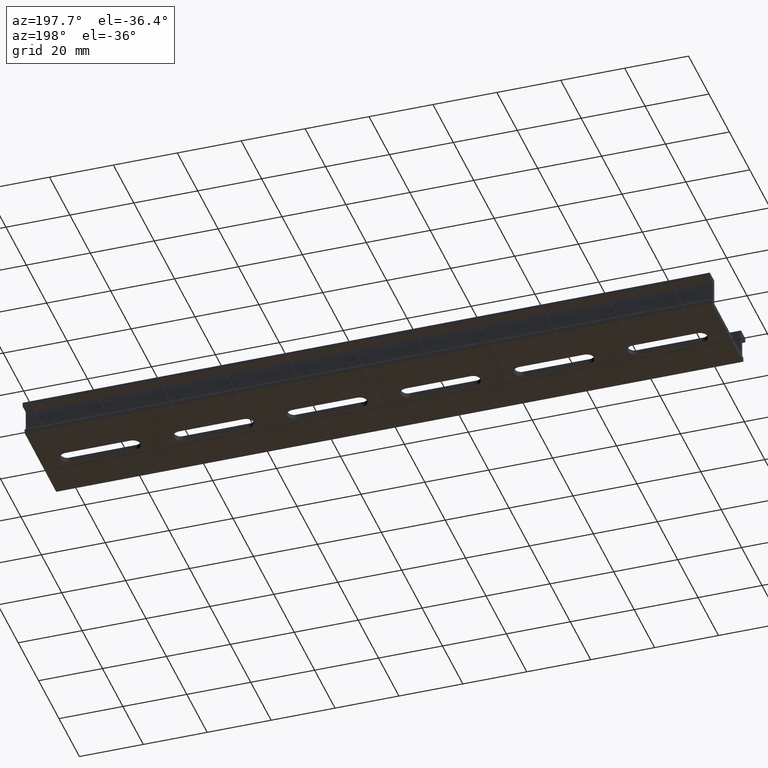
[diagram: clean part render]
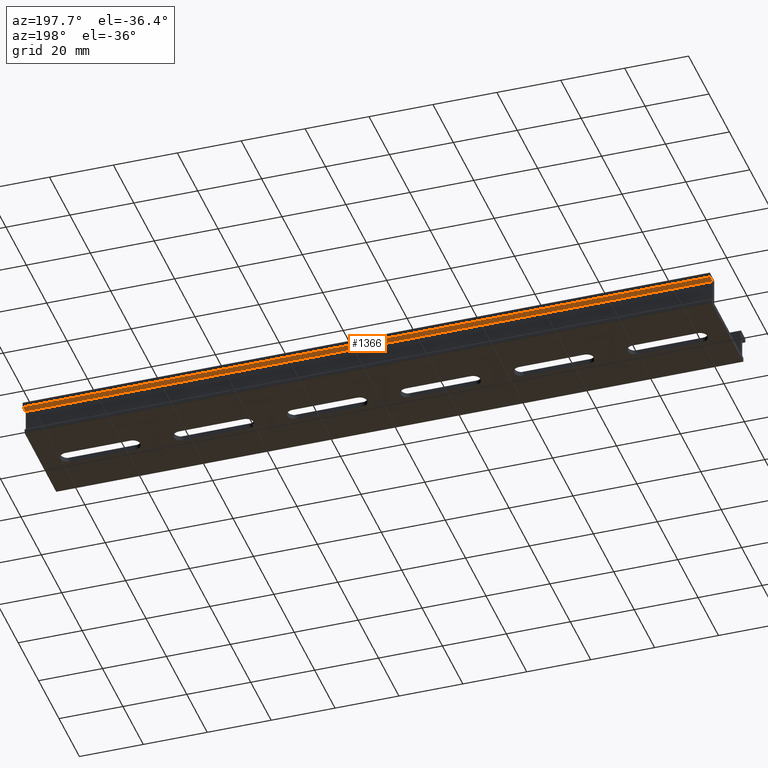
[diagram: same view with one face highlighted and labeled with its STEP entity id]
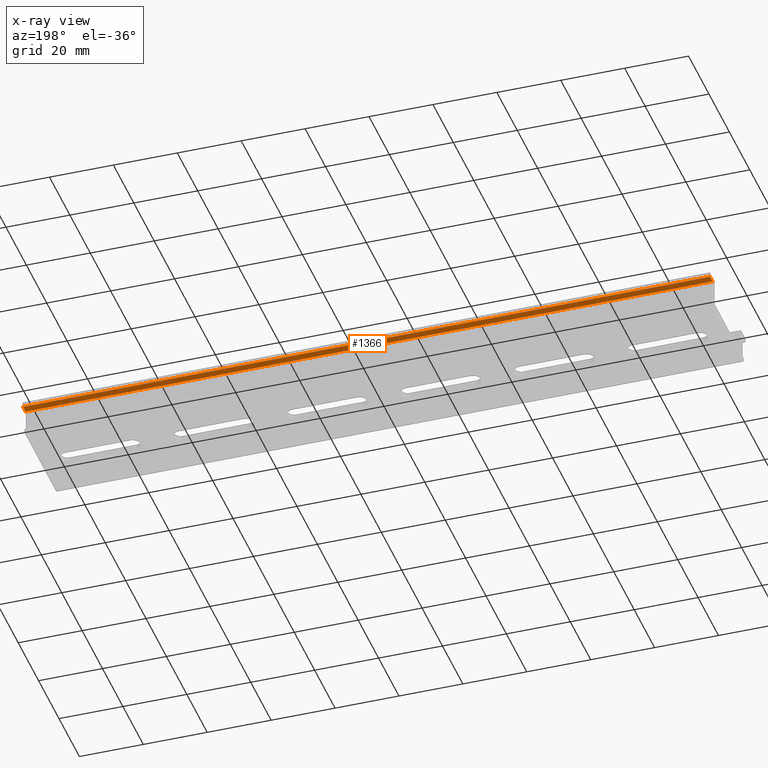
[diagram: x-ray of the same camera — body ghosted, the highlighted face saturated]
A machine part, auxiliary view. The second image highlights one B-rep face of the part: STEP entity #1366.
The next image is the same camera in x-ray: the body ghosted, the highlighted face saturated — about 0% of this face is hidden behind the body in this view.
In plain terms, the highlighted planar face has unit normal (0, -0, 1).
Its self-contained STEP definition (entity closure, byte-faithful):
#19 = VECTOR ( 'NONE', #1233, 1000.000000000000000 ) ;
#81 = VERTEX_POINT ( 'NONE', #1262 ) ;
#131 = DIRECTION ( 'NONE',  ( -1.000000000000000000, -0.000000000000000000, -0.000000000000000000 ) ) ;
#231 = EDGE_LOOP ( 'NONE', ( #1917, #1669, #636, #1794 ) ) ;
#278 = LINE ( 'NONE', #1204, #19 ) ;
#359 = PLANE ( 'NONE',  #700 ) ;
#463 = CARTESIAN_POINT ( 'NONE',  ( 107.5000000000000000, 14.76804293176069827, 3.500000000000049738 ) ) ;
#636 = ORIENTED_EDGE ( 'NONE', *, *, #873, .F. ) ;
#650 = VERTEX_POINT ( 'NONE', #1939 ) ;
#700 = AXIS2_PLACEMENT_3D ( 'NONE', #463, #1742, #1885 ) ;
#731 = VERTEX_POINT ( 'NONE', #1320 ) ;
#753 = DIRECTION ( 'NONE',  ( 0.000000000000000000, 1.000000000000000000, 2.112155756924288882E-15 ) ) ;
#769 = FACE_OUTER_BOUND ( 'NONE', #231, .T. ) ;
#873 = EDGE_CURVE ( 'NONE', #650, #81, #2008, .T. ) ;
#927 = EDGE_CURVE ( 'NONE', #1776, #731, #278, .T. ) ;
#950 = EDGE_CURVE ( 'NONE', #81, #731, #1875, .T. ) ;
#1011 = VECTOR ( 'NONE', #131, 1000.000000000000000 ) ;
#1040 = CARTESIAN_POINT ( 'NONE',  ( 107.5000000000000000, 14.76804293176069827, 3.500000000000049738 ) ) ;
#1057 = VECTOR ( 'NONE', #1243, 1000.000000000000000 ) ;
#1061 = LINE ( 'NONE', #1698, #1011 ) ;
#1204 = CARTESIAN_POINT ( 'NONE',  ( -107.5000000000000000, 14.76804293176069827, 3.500000000000049738 ) ) ;
#1233 = DIRECTION ( 'NONE',  ( 0.000000000000000000, 1.000000000000000000, 2.112155756924288882E-15 ) ) ;
#1243 = DIRECTION ( 'NONE',  ( -1.000000000000000000, -0.000000000000000000, -0.000000000000000000 ) ) ;
#1262 = CARTESIAN_POINT ( 'NONE',  ( 107.5000000000000000, 17.23195706823930351, 3.500000000000055067 ) ) ;
#1320 = CARTESIAN_POINT ( 'NONE',  ( -107.5000000000000000, 17.23195706823930351, 3.500000000000055067 ) ) ;
#1366 = ADVANCED_FACE ( 'NONE', ( #769 ), #359, .F. ) ;
#1486 = CARTESIAN_POINT ( 'NONE',  ( -107.5000000000000000, 14.76804293176069827, 3.500000000000049738 ) ) ;
#1556 = EDGE_CURVE ( 'NONE', #650, #1776, #1061, .T. ) ;
#1669 = ORIENTED_EDGE ( 'NONE', *, *, #950, .F. ) ;
#1681 = VECTOR ( 'NONE', #753, 1000.000000000000000 ) ;
#1698 = CARTESIAN_POINT ( 'NONE',  ( 107.5000000000000000, 14.76804293176069827, 3.500000000000049738 ) ) ;
#1742 = DIRECTION ( 'NONE',  ( 0.000000000000000000, -2.112155756924288882E-15, 1.000000000000000000 ) ) ;
#1776 = VERTEX_POINT ( 'NONE', #1486 ) ;
#1794 = ORIENTED_EDGE ( 'NONE', *, *, #1556, .T. ) ;
#1875 = LINE ( 'NONE', #1889, #1057 ) ;
#1885 = DIRECTION ( 'NONE',  ( 0.000000000000000000, -1.000000000000000000, -2.112155756924288882E-15 ) ) ;
#1889 = CARTESIAN_POINT ( 'NONE',  ( 107.5000000000000000, 17.23195706823930351, 3.500000000000055067 ) ) ;
#1917 = ORIENTED_EDGE ( 'NONE', *, *, #927, .T. ) ;
#1939 = CARTESIAN_POINT ( 'NONE',  ( 107.5000000000000000, 14.76804293176069827, 3.500000000000049738 ) ) ;
#2008 = LINE ( 'NONE', #1040, #1681 ) ;